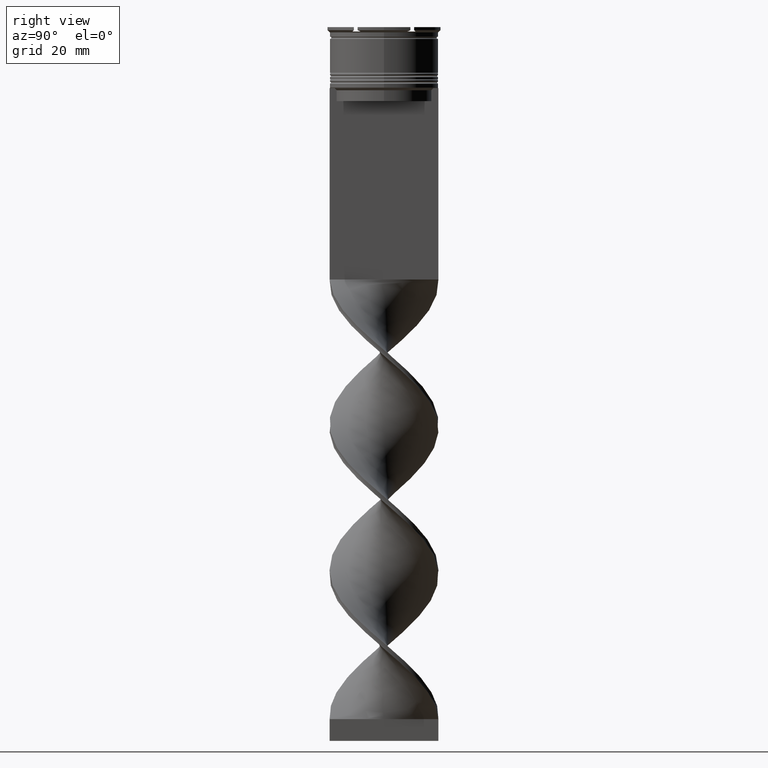
[diagram: clean part render]
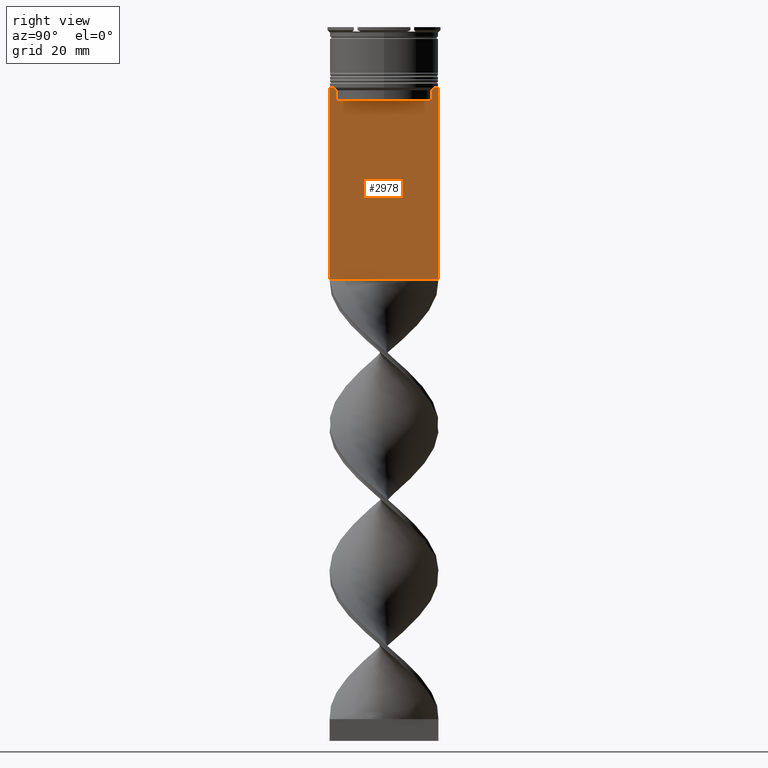
[diagram: same view with one face highlighted and labeled with its STEP entity id]
A machine part, right view. The second image highlights one B-rep face of the part: STEP entity #2978.
In plain terms, the highlighted planar face has unit normal (-1, 0, 0).
Its self-contained STEP definition (entity closure, byte-faithful):
#11 = VECTOR ( 'NONE', #1665, 1000.000000000000000 ) ;
#28 = B_SPLINE_CURVE_WITH_KNOTS ( 'NONE', 3,
 ( #738, #2026, #2676, #401 ),
 .UNSPECIFIED., .F., .F.,
 ( 4, 4 ),
 ( 0.05009718908159448147, 0.05081156920313959630 ),
 .UNSPECIFIED. ) ;
#51 = CARTESIAN_POINT ( 'NONE',  ( 0.7500000000000002220, -12.50000000000000000, -58.00000000000000000 ) ) ;
#74 = EDGE_CURVE ( 'NONE', #3683, #568, #240, .T. ) ;
#109 = CARTESIAN_POINT ( 'NONE',  ( 0.7500000000000002220, -12.50000000000000000, -14.00000000000000178 ) ) ;
#129 = EDGE_CURVE ( 'NONE', #1829, #1453, #1993, .T. ) ;
#173 = EDGE_CURVE ( 'NONE', #568, #2647, #1898, .T. ) ;
#229 = VECTOR ( 'NONE', #4000, 1000.000000000000000 ) ;
#230 = DIRECTION ( 'NONE',  ( 0.000000000000000000, -1.000000000000000000, 0.000000000000000000 ) ) ;
#240 = LINE ( 'NONE', #1197, #3435 ) ;
#267 = CARTESIAN_POINT ( 'NONE',  ( 0.7500000000000002220, -12.50000000000000000, -14.00000000000000178 ) ) ;
#287 = VECTOR ( 'NONE', #2635, 1000.000000000000000 ) ;
#291 = CARTESIAN_POINT ( 'NONE',  ( 0.7500000000000002220, -12.50000000000000000, -14.00000000000000178 ) ) ;
#372 = ORIENTED_EDGE ( 'NONE', *, *, #3152, .F. ) ;
#401 = CARTESIAN_POINT ( 'NONE',  ( 0.7500000000000002220, -11.37530219378809093, -14.00000000000000178 ) ) ;
#413 = ORIENTED_EDGE ( 'NONE', *, *, #173, .T. ) ;
#420 = B_SPLINE_CURVE_WITH_KNOTS ( 'NONE', 3,
 ( #3855, #3228, #3607, #2021 ),
 .UNSPECIFIED., .F., .F.,
 ( 4, 4 ),
 ( 0.01936090553552769281, 0.02006881572333104116 ),
 .UNSPECIFIED. ) ;
#483 = EDGE_CURVE ( 'NONE', #3640, #3430, #2603, .T. ) ;
#520 = ORIENTED_EDGE ( 'NONE', *, *, #483, .T. ) ;
#527 = VERTEX_POINT ( 'NONE', #1716 ) ;
#568 = VERTEX_POINT ( 'NONE', #2124 ) ;
#569 = VECTOR ( 'NONE', #1875, 1000.000000000000000 ) ;
#688 = ORIENTED_EDGE ( 'NONE', *, *, #3865, .T. ) ;
#738 = CARTESIAN_POINT ( 'NONE',  ( 0.7500000000000002220, -10.87416663473574197, -14.50000000000000000 ) ) ;
#761 = CARTESIAN_POINT ( 'NONE',  ( 0.7500000000000002220, 12.50000000000000000, -58.00000000000000000 ) ) ;
#811 = ORIENTED_EDGE ( 'NONE', *, *, #3944, .T. ) ;
#813 = ORIENTED_EDGE ( 'NONE', *, *, #3412, .T. ) ;
#976 = CARTESIAN_POINT ( 'NONE',  ( 0.7500000000000002220, 11.37530219378809093, -14.00000000000000178 ) ) ;
#1075 = PLANE ( 'NONE',  #1295 ) ;
#1109 = EDGE_CURVE ( 'NONE', #4091, #527, #2974, .T. ) ;
#1140 = VERTEX_POINT ( 'NONE', #3660 ) ;
#1197 = CARTESIAN_POINT ( 'NONE',  ( 0.7500000000000002220, -12.50000000000000000, 11.04495957273638673 ) ) ;
#1239 = ORIENTED_EDGE ( 'NONE', *, *, #1714, .T. ) ;
#1265 = ORIENTED_EDGE ( 'NONE', *, *, #129, .T. ) ;
#1295 = AXIS2_PLACEMENT_3D ( 'NONE', #2677, #3880, #2610 ) ;
#1391 = FACE_OUTER_BOUND ( 'NONE', #3945, .T. ) ;
#1444 = LINE ( 'NONE', #2733, #229 ) ;
#1453 = VERTEX_POINT ( 'NONE', #2813 ) ;
#1640 = CARTESIAN_POINT ( 'NONE',  ( 0.7500000000000002220, -10.87416663473574019, -17.00000000000000000 ) ) ;
#1665 = DIRECTION ( 'NONE',  ( 0.000000000000000000, 0.000000000000000000, -1.000000000000000000 ) ) ;
#1714 = EDGE_CURVE ( 'NONE', #1453, #2275, #28, .T. ) ;
#1716 = CARTESIAN_POINT ( 'NONE',  ( 0.7500000000000002220, 10.87416663473574019, -17.00000000000000000 ) ) ;
#1763 = VECTOR ( 'NONE', #2281, 1000.000000000000000 ) ;
#1829 = VERTEX_POINT ( 'NONE', #1640 ) ;
#1835 = VECTOR ( 'NONE', #2043, 1000.000000000000000 ) ;
#1849 = LINE ( 'NONE', #291, #2785 ) ;
#1875 = DIRECTION ( 'NONE',  ( 0.000000000000000000, -1.000000000000000000, 0.000000000000000000 ) ) ;
#1898 = LINE ( 'NONE', #51, #287 ) ;
#1993 = LINE ( 'NONE', #4129, #1763 ) ;
#1996 = ORIENTED_EDGE ( 'NONE', *, *, #2309, .T. ) ;
#2021 = CARTESIAN_POINT ( 'NONE',  ( 0.7500000000000002220, 10.87416663473574197, -14.50000000000000000 ) ) ;
#2026 = CARTESIAN_POINT ( 'NONE',  ( 0.7500000000000002220, -11.04122051801870441, -14.33334204001847567 ) ) ;
#2043 = DIRECTION ( 'NONE',  ( 0.000000000000000000, -1.000000000000000000, 0.000000000000000000 ) ) ;
#2067 = CARTESIAN_POINT ( 'NONE',  ( 0.7500000000000002220, 12.50000000000000000, -14.00000000000000178 ) ) ;
#2109 = ORIENTED_EDGE ( 'NONE', *, *, #74, .T. ) ;
#2124 = CARTESIAN_POINT ( 'NONE',  ( 0.7500000000000002220, -12.50000000000000000, -58.00000000000000000 ) ) ;
#2143 = DIRECTION ( 'NONE',  ( 0.000000000000000000, -1.000000000000000000, 0.000000000000000000 ) ) ;
#2180 = VECTOR ( 'NONE', #2317, 1000.000000000000000 ) ;
#2275 = VERTEX_POINT ( 'NONE', #2671 ) ;
#2280 = LINE ( 'NONE', #2865, #569 ) ;
#2281 = DIRECTION ( 'NONE',  ( -0.000000000000000000, -0.000000000000000000, 1.000000000000000000 ) ) ;
#2309 = EDGE_CURVE ( 'NONE', #3430, #4091, #420, .T. ) ;
#2317 = DIRECTION ( 'NONE',  ( 0.000000000000000000, -1.000000000000000000, 0.000000000000000000 ) ) ;
#2487 = DIRECTION ( 'NONE',  ( 0.000000000000000000, 0.000000000000000000, -1.000000000000000000 ) ) ;
#2501 = ORIENTED_EDGE ( 'NONE', *, *, #4014, .T. ) ;
#2603 = LINE ( 'NONE', #3624, #1835 ) ;
#2610 = DIRECTION ( 'NONE',  ( 0.000000000000000000, 0.000000000000000000, 1.000000000000000000 ) ) ;
#2626 = CARTESIAN_POINT ( 'NONE',  ( 0.7500000000000002220, 12.37729776647553059, -14.00000000000000178 ) ) ;
#2635 = DIRECTION ( 'NONE',  ( 0.000000000000000000, 1.000000000000000000, 0.000000000000000000 ) ) ;
#2647 = VERTEX_POINT ( 'NONE', #761 ) ;
#2671 = CARTESIAN_POINT ( 'NONE',  ( 0.7500000000000002220, -11.37530219378809093, -14.00000000000000178 ) ) ;
#2676 = CARTESIAN_POINT ( 'NONE',  ( 0.7500000000000002220, -11.20826532207830439, -14.16667499063191826 ) ) ;
#2677 = CARTESIAN_POINT ( 'NONE',  ( 0.7500000000000002220, -12.50000000000000000, 11.04495957273638673 ) ) ;
#2733 = CARTESIAN_POINT ( 'NONE',  ( 0.7500000000000002220, 12.50000000000000000, 11.04495957273638673 ) ) ;
#2785 = VECTOR ( 'NONE', #2143, 1000.000000000000000 ) ;
#2808 = CARTESIAN_POINT ( 'NONE',  ( 0.7500000000000002220, -12.50000000000000000, -14.00000000000000178 ) ) ;
#2813 = CARTESIAN_POINT ( 'NONE',  ( 0.7500000000000002220, -10.87416663473574197, -14.50000000000000000 ) ) ;
#2823 = ORIENTED_EDGE ( 'NONE', *, *, #1109, .T. ) ;
#2830 = LINE ( 'NONE', #267, #2180 ) ;
#2865 = CARTESIAN_POINT ( 'NONE',  ( 0.7500000000000002220, 10.90000000000000213, -17.00000000000000000 ) ) ;
#2974 = LINE ( 'NONE', #3263, #11 ) ;
#2978 = ADVANCED_FACE ( 'NONE', ( #1391 ), #1075, .F. ) ;
#3106 = LINE ( 'NONE', #2808, #4110 ) ;
#3152 = EDGE_CURVE ( 'NONE', #4040, #2647, #1444, .T. ) ;
#3228 = CARTESIAN_POINT ( 'NONE',  ( 0.7500000000000002220, 11.20826531587977648, -14.16667499681701514 ) ) ;
#3263 = CARTESIAN_POINT ( 'NONE',  ( 0.7500000000000002220, 10.87416663473574197, 0.000000000000000000 ) ) ;
#3355 = CARTESIAN_POINT ( 'NONE',  ( 0.7500000000000002220, 10.87416663473574197, -14.50000000000000000 ) ) ;
#3412 = EDGE_CURVE ( 'NONE', #527, #1829, #2280, .T. ) ;
#3430 = VERTEX_POINT ( 'NONE', #976 ) ;
#3435 = VECTOR ( 'NONE', #2487, 1000.000000000000000 ) ;
#3607 = CARTESIAN_POINT ( 'NONE',  ( 0.7500000000000002220, 11.04122051153452055, -14.33334204648729404 ) ) ;
#3624 = CARTESIAN_POINT ( 'NONE',  ( 0.7500000000000002220, -12.50000000000000000, -14.00000000000000178 ) ) ;
#3640 = VERTEX_POINT ( 'NONE', #2626 ) ;
#3660 = CARTESIAN_POINT ( 'NONE',  ( 0.7500000000000002220, -12.37729776647553059, -14.00000000000000178 ) ) ;
#3683 = VERTEX_POINT ( 'NONE', #109 ) ;
#3855 = CARTESIAN_POINT ( 'NONE',  ( 0.7500000000000002220, 11.37530219378809093, -14.00000000000000178 ) ) ;
#3865 = EDGE_CURVE ( 'NONE', #2275, #1140, #1849, .T. ) ;
#3880 = DIRECTION ( 'NONE',  ( -1.000000000000000000, 0.000000000000000000, 0.000000000000000000 ) ) ;
#3944 = EDGE_CURVE ( 'NONE', #1140, #3683, #3106, .T. ) ;
#3945 = EDGE_LOOP ( 'NONE', ( #520, #1996, #2823, #813, #1265, #1239, #688, #811, #2109, #413, #372, #2501 ) ) ;
#4000 = DIRECTION ( 'NONE',  ( 0.000000000000000000, 0.000000000000000000, -1.000000000000000000 ) ) ;
#4014 = EDGE_CURVE ( 'NONE', #4040, #3640, #2830, .T. ) ;
#4040 = VERTEX_POINT ( 'NONE', #2067 ) ;
#4091 = VERTEX_POINT ( 'NONE', #3355 ) ;
#4110 = VECTOR ( 'NONE', #230, 1000.000000000000000 ) ;
#4129 = CARTESIAN_POINT ( 'NONE',  ( 0.7500000000000002220, -10.87416663473574197, 0.000000000000000000 ) ) ;